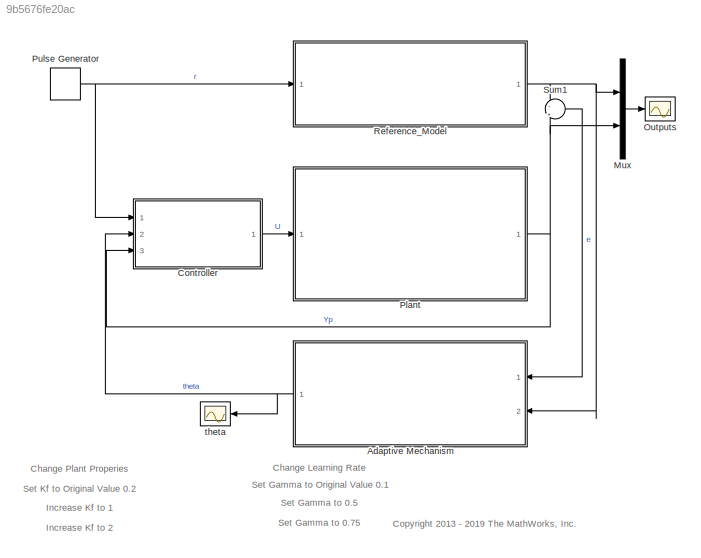
MODEL slx_9b5676fe20ac
KIND model
CONFIG AbsTol = auto
CONFIG EnableMultiTasking = on
CONFIG FixedStep = 0.0001
CONFIG MaxStep = auto
CONFIG MinStep = auto
CONFIG PreLoadFcn = R= 2.0; % Ohms\nL= 0.5; % Henrys\nKm = .015; % torque constant\nKb = .015; % emf constant\nB = 0.2; % Nms\nJ= 0.02; % kg.m^2\nKc= 1;\nKf = 0.2;\ngamma = 0.1;
CONFIG RelTol = 1e-3
CONFIG SampleTimeConstraint = Unconstrained
CONFIG Solver = ode3
CONFIG SolverName = ode3
CONFIG StartTime = 0.0
CONFIG StopTime = 500
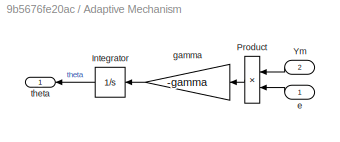
BLOCK [SubSystem] Adaptive Mechanism
  Ports = [2, 1]
  RequestExecContextInheritance = off
BLOCK [Integrator] Adaptive Mechanism/Integrator
  InitialCondition = 1
  Ports = [1, 1]
BLOCK [Product] Adaptive Mechanism/Product
  InputSameDT = off
  OutDataTypeStr = Inherit: Inherit via internal rule
  Ports = [2, 1]
  RndMeth = Floor
  SaturateOnIntegerOverflow = off
BLOCK [Inport] Adaptive Mechanism/Ym
  IconDisplay = Port number
  Port = 2
BLOCK [Inport] Adaptive Mechanism/e
  IconDisplay = Port number
BLOCK [Gain] Adaptive Mechanism/gamma
  Gain = -gamma
  OutDataTypeStr = Inherit: Inherit via internal rule
  ParamDataTypeStr = Inherit: Inherit via internal rule
  SaturateOnIntegerOverflow = off
BLOCK [Outport] Adaptive Mechanism/theta
  IconDisplay = Port number
  VectorParamsAs1DForOutWhenUnconnected = off
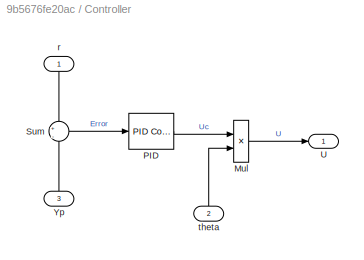
BLOCK [SubSystem] Controller
  Ports = [3, 1]
  RequestExecContextInheritance = off
BLOCK [Product] Controller/Mul
  InputSameDT = off
  OutDataTypeStr = Inherit: Inherit via internal rule
  Ports = [2, 1]
  RndMeth = Floor
  SaturateOnIntegerOverflow = off
BLOCK [Reference] Controller/PID  REF=simulink/Continuous/PID Controller
  Ports = [1, 1]
  SourceBlock = simulink/Continuous/PID Controller
  SourceProductBaseCode = SL
  SourceProductName = Simulink
  SourceType = PID 1dof
BLOCK [Sum] Controller/Sum
  IconShape = round
  InputSameDT = off
  Inputs = +|-
  OutDataTypeStr = Inherit: Inherit via internal rule
  Ports = [2, 1]
  SaturateOnIntegerOverflow = off
BLOCK [Outport] Controller/U
  IconDisplay = Port number
  VectorParamsAs1DForOutWhenUnconnected = off
BLOCK [Inport] Controller/Yp
  IconDisplay = Port number
  Port = 3
BLOCK [Inport] Controller/r
  IconDisplay = Port number
BLOCK [Inport] Controller/theta
  IconDisplay = Port number
  Port = 2
BLOCK [Mux] Mux
  DisplayOption = bar
  Inputs = 2
  Ports = [2, 1]
BLOCK [Scope] Outputs
  Floating = off
  NumInputPorts = 1
  Ports = [1]
  ScopeSpecificationString = Simulink.scopes.TimeScopeBlockCfg('CurrentConfiguration', extmgr.ConfigurationSet(extmgr.Configuration('Core','General UI',true,'FigureColor',[0.803921568627451 0.87843137254902 0.968627450980392]),extmgr.Configuration('Core','Source UI',true),extmgr.Configuration('Sources','WiredSimulink',true,'DataLoggingSaveFormat','StructureWithTime','DataLoggingDecimation','1','DataLoggingDecimateData',true),...<+2948ch>
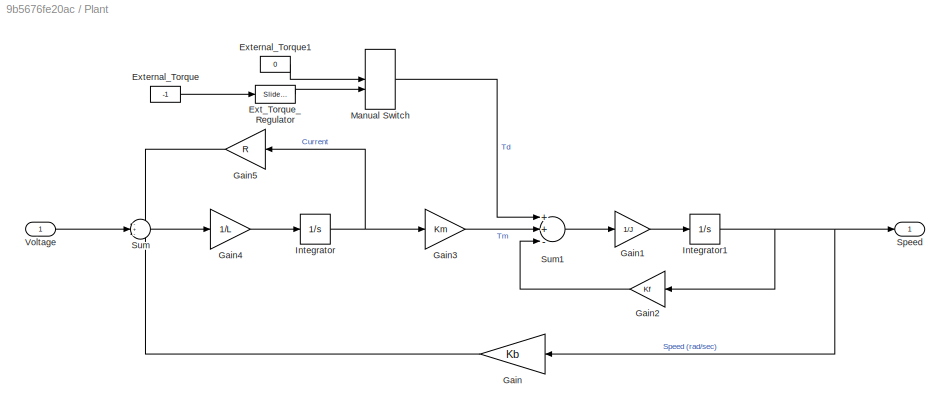
BLOCK [SubSystem] Plant
  Ports = [1, 1]
  RequestExecContextInheritance = off
BLOCK [Reference] Plant/Ext_Torque_Regulator  REF=simulink/Math
Operations/Slider
Gain
  Ports = [1, 1]
  SourceBlock = simulink/Math\nOperations/Slider\nGain
  SourceProductBaseCode = SL
  SourceProductName = Simulink
  SourceType = Slider Gain
BLOCK [Constant] Plant/External_Torque
  Value = -1
BLOCK [Constant] Plant/External_Torque1
  Value = 0
BLOCK [Gain] Plant/Gain
  Gain = Kb
  OutDataTypeStr = Inherit: Inherit via internal rule
  ParamDataTypeStr = Inherit: Inherit via internal rule
  SaturateOnIntegerOverflow = off
BLOCK [Gain] Plant/Gain1
  Gain = 1/J
  OutDataTypeStr = Inherit: Inherit via internal rule
  ParamDataTypeStr = Inherit: Inherit via internal rule
  SaturateOnIntegerOverflow = off
BLOCK [Gain] Plant/Gain2
  Gain = Kf
  OutDataTypeStr = Inherit: Inherit via internal rule
  ParamDataTypeStr = Inherit: Inherit via internal rule
  SaturateOnIntegerOverflow = off
BLOCK [Gain] Plant/Gain3
  Gain = Km
  OutDataTypeStr = Inherit: Inherit via internal rule
  ParamDataTypeStr = Inherit: Inherit via internal rule
  SaturateOnIntegerOverflow = off
BLOCK [Gain] Plant/Gain4
  Gain = 1/L
  OutDataTypeStr = Inherit: Inherit via internal rule
  ParamDataTypeStr = Inherit: Inherit via internal rule
  SaturateOnIntegerOverflow = off
BLOCK [Gain] Plant/Gain5
  Gain = R
  OutDataTypeStr = Inherit: Inherit via internal rule
  ParamDataTypeStr = Inherit: Inherit via internal rule
  SaturateOnIntegerOverflow = off
BLOCK [Integrator] Plant/Integrator
  ContinuousStateAttributes = 'Current'
  Ports = [1, 1]
BLOCK [Integrator] Plant/Integrator1
  ContinuousStateAttributes = 'Speed'
  Ports = [1, 1]
BLOCK [ManualSwitch] Plant/Manual Switch
BLOCK [Outport] Plant/Speed
  IconDisplay = Port number
  VectorParamsAs1DForOutWhenUnconnected = off
BLOCK [Sum] Plant/Sum
  IconShape = round
  InputSameDT = off
  Inputs = -+-
  OutDataTypeStr = Inherit: Inherit via internal rule
  Ports = [3, 1]
  SaturateOnIntegerOverflow = off
BLOCK [Sum] Plant/Sum1
  InputSameDT = off
  Inputs = ++-
  OutDataTypeStr = Inherit: Inherit via internal rule
  Ports = [3, 1]
  SaturateOnIntegerOverflow = off
BLOCK [Inport] Plant/Voltage
  IconDisplay = Port number
BLOCK [DiscretePulseGenerator] Pulse Generator
  Amplitude = 3.14
  Period = 10
  Ports = [0, 1]
  PulseType = Time based
  PulseWidth = 50
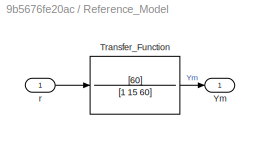
BLOCK [SubSystem] Reference_Model
  Ports = [1, 1]
  RequestExecContextInheritance = off
BLOCK [TransferFcn] Reference_Model/Transfer_Function
  Denominator = [1 15 60]
  Numerator = [60]
BLOCK [Outport] Reference_Model/Ym
  IconDisplay = Port number
  VectorParamsAs1DForOutWhenUnconnected = off
BLOCK [Inport] Reference_Model/r
  IconDisplay = Port number
BLOCK [Sum] Sum1
  IconShape = round
  InputSameDT = off
  Inputs = -|+
  OutDataTypeStr = Inherit: Inherit via internal rule
  Ports = [2, 1]
  SaturateOnIntegerOverflow = off
BLOCK [Scope] theta
  Floating = off
  NumInputPorts = 1
  Ports = [1]
  ScopeSpecificationString = Simulink.scopes.TimeScopeBlockCfg('CurrentConfiguration', extmgr.ConfigurationSet(extmgr.Configuration('Core','General UI',true,'FigureColor',[0.952941176470588 0.870588235294118 0.733333333333333]),extmgr.Configuration('Core','Source UI',true),extmgr.Configuration('Sources','WiredSimulink',true,'DataLoggingVariableName','ScopeData1','DataLoggingSaveFormat','StructureWithTime','DataLoggingDecimati...<+2877ch>
ANNOTATION (root): Change Learning Rate
ANNOTATION (root): Change Plant Properies
ANNOTATION (root): <copyright redacted>
ANNOTATION (root): Increase Kf to 1
ANNOTATION (root): Increase Kf to 2
ANNOTATION (root): Set Gamma to 0.5
ANNOTATION (root): Set Gamma to 0.75
ANNOTATION (root): Set Gamma to Original Value 0.1
ANNOTATION (root): Set Kf to Original Value 0.2
LINE Adaptive Mechanism/Integrator:1 -> Adaptive Mechanism/theta:1
LINE Adaptive Mechanism/Product:1 -> Adaptive Mechanism/gamma:1
LINE Adaptive Mechanism/Ym:1 -> Adaptive Mechanism/Product:1
LINE Adaptive Mechanism/e:1 -> Adaptive Mechanism/Product:2
LINE Adaptive Mechanism/gamma:1 -> Adaptive Mechanism/Integrator:1
NET Adaptive Mechanism:1 -> Controller:2, theta:1
LINE Controller/Mul:1 -> Controller/U:1
LINE Controller/PID:1 -> Controller/Mul:1
LINE Controller/Sum:1 -> Controller/PID:1
LINE Controller/Yp:1 -> Controller/Sum:2
LINE Controller/r:1 -> Controller/Sum:1
LINE Controller/theta:1 -> Controller/Mul:2
LINE Controller:1 -> Plant:1
LINE Mux:1 -> Outputs:1
LINE Plant/Ext_Torque_Regulator:1 -> Plant/Manual Switch:2
LINE Plant/External_Torque1:1 -> Plant/Manual Switch:1
LINE Plant/External_Torque:1 -> Plant/Ext_Torque_Regulator:1
LINE Plant/Gain1:1 -> Plant/Integrator1:1
LINE Plant/Gain2:1 -> Plant/Sum1:3
LINE Plant/Gain3:1 -> Plant/Sum1:2
LINE Plant/Gain4:1 -> Plant/Integrator:1
LINE Plant/Gain5:1 -> Plant/Sum:1
LINE Plant/Gain:1 -> Plant/Sum:3
NET Plant/Integrator1:1 -> Plant/Gain2:1, Plant/Gain:1, Plant/Speed:1
NET Plant/Integrator:1 -> Plant/Gain3:1, Plant/Gain5:1
LINE Plant/Manual Switch:1 -> Plant/Sum1:1
LINE Plant/Sum1:1 -> Plant/Gain1:1
LINE Plant/Sum:1 -> Plant/Gain4:1
LINE Plant/Voltage:1 -> Plant/Sum:2
NET Plant:1 -> Controller:3, Mux:2, Sum1:2
NET Pulse Generator:1 -> Controller:1, Reference_Model:1
LINE Reference_Model/Transfer_Function:1 -> Reference_Model/Ym:1
LINE Reference_Model/r:1 -> Reference_Model/Transfer_Function:1
NET Reference_Model:1 -> Adaptive Mechanism:2, Mux:1, Sum1:1
LINE Sum1:1 -> Adaptive Mechanism:1
note: NET lines group one-source signal fan-out (src -> all destinations, sorted); 1:1 wires keep LINE
